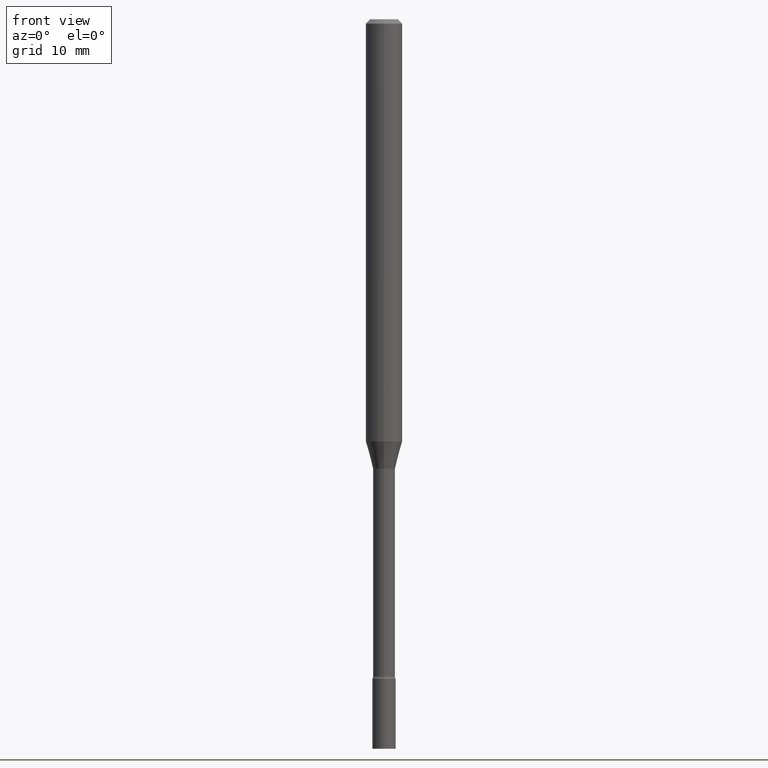
[diagram: clean part render]
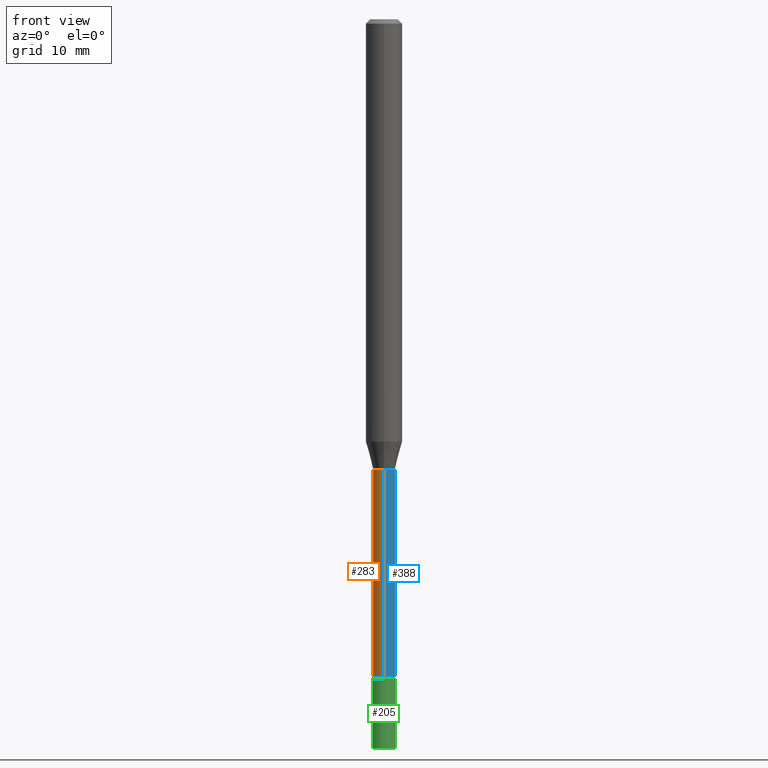
[diagram: same view with three faces highlighted in distinct colors, each labeled with its STEP entity id]
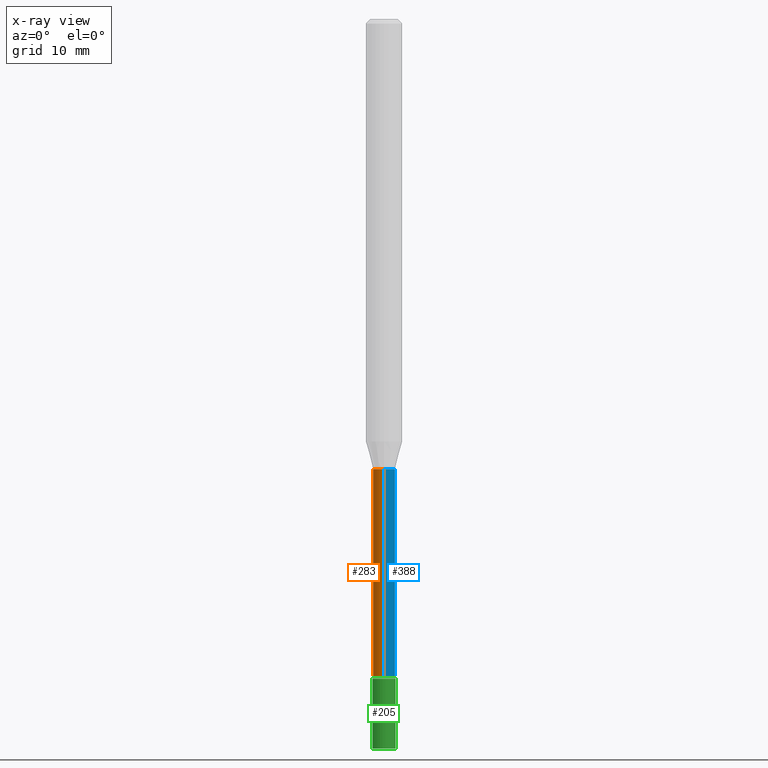
[diagram: x-ray of the same camera — body ghosted, the three highlighted faces saturated]
A machine part, front view with three faces highlighted in distinct colors.
The next image is the same camera in x-ray (body ghosted, the three faces saturated) — at least one of them is partly hidden behind the body in this view.
Their STEP definitions:

[orange] entity #283 — the highlighted cylindrical surface (edge-blend (fillet) strip) has radius 0.955 mm, axis along (-0, 0, 1).
#9 = DIRECTION ( 'NONE',  ( -2.445482954070053837E-29, 3.491461078266697012E-15, 1.000000000000000000 ) ) ;
#53 = VERTEX_POINT ( 'NONE', #300 ) ;
#57 = ORIENTED_EDGE ( 'NONE', *, *, #347, .F. ) ;
#74 = FACE_OUTER_BOUND ( 'NONE', #415, .T. ) ;
#77 = VECTOR ( 'NONE', #224, 39.37007874015748143 ) ;
#78 = AXIS2_PLACEMENT_3D ( 'NONE', #509, #295, #511 ) ;
#107 = DIRECTION ( 'NONE',  ( -6.982962677686265922E-15, -1.000000000000000000, 3.491461078266697012E-15 ) ) ;
#157 = DIRECTION ( 'NONE',  ( -2.445482954070053556E-29, 3.491461078266697012E-15, 1.000000000000000000 ) ) ;
#166 = CARTESIAN_POINT ( 'NONE',  ( -2.625593966809658857E-16, -0.03760000000000537912, -1.541974787463811003 ) ) ;
#171 = VERTEX_POINT ( 'NONE', #346 ) ;
#190 = CYLINDRICAL_SURFACE ( 'NONE', #209, 0.03760000000000004311 ) ;
#209 = AXIS2_PLACEMENT_3D ( 'NONE', #432, #157, #107 ) ;
#223 = VERTEX_POINT ( 'NONE', #501 ) ;
#224 = DIRECTION ( 'NONE',  ( -2.445482954070053837E-29, 3.491461078266697012E-15, 1.000000000000000000 ) ) ;
#240 = EDGE_CURVE ( 'NONE', #171, #454, #332, .T. ) ;
#271 = AXIS2_PLACEMENT_3D ( 'NONE', #434, #468, #391 ) ;
#275 = VECTOR ( 'NONE', #9, 39.37007874015748143 ) ;
#283 = ADVANCED_FACE ( 'NONE', ( #74 ), #190, .T. ) ;
#289 = CARTESIAN_POINT ( 'NONE',  ( -2.625593966810038989E-16, -0.03760000000000004311, 1.312789365428279582E-16 ) ) ;
#295 = DIRECTION ( 'NONE',  ( -2.445482954070053556E-29, 3.491461078266697012E-15, 1.000000000000000000 ) ) ;
#300 = CARTESIAN_POINT ( 'NONE',  ( 2.671640686458530486E-16, 0.03759999999999461689, -1.541974787463811003 ) ) ;
#311 = CIRCLE ( 'NONE', #271, 0.03759999999999999454 ) ;
#332 = LINE ( 'NONE', #289, #77 ) ;
#346 = CARTESIAN_POINT ( 'NONE',  ( -2.625593966809491224E-16, -0.03760000000000795345, -2.251861204020249918 ) ) ;
#347 = EDGE_CURVE ( 'NONE', #53, #454, #311, .T. ) ;
#352 = ORIENTED_EDGE ( 'NONE', *, *, #453, .F. ) ;
#360 = LINE ( 'NONE', #365, #275 ) ;
#361 = EDGE_CURVE ( 'NONE', #223, #171, #431, .T. ) ;
#365 = CARTESIAN_POINT ( 'NONE',  ( 2.671640686457979269E-16, 0.03760000000000004311, -1.312789365428279582E-16 ) ) ;
#391 = DIRECTION ( 'NONE',  ( -6.982962677686265922E-15, -1.000000000000000000, 0.000000000000000000 ) ) ;
#415 = EDGE_LOOP ( 'NONE', ( #352, #493, #500, #57 ) ) ;
#431 = CIRCLE ( 'NONE', #78, 0.03760000000000009168 ) ;
#432 = CARTESIAN_POINT ( 'NONE',  ( 0.000000000000000000, 0.000000000000000000, 0.000000000000000000 ) ) ;
#434 = CARTESIAN_POINT ( 'NONE',  ( 3.770873058348543263E-29, -5.383744954098458291E-15, -1.541974787463811003 ) ) ;
#453 = EDGE_CURVE ( 'NONE', #223, #53, #360, .T. ) ;
#454 = VERTEX_POINT ( 'NONE', #166 ) ;
#468 = DIRECTION ( 'NONE',  ( -2.445482954070053556E-29, 3.491461078266697012E-15, 1.000000000000000000 ) ) ;
#493 = ORIENTED_EDGE ( 'NONE', *, *, #361, .T. ) ;
#500 = ORIENTED_EDGE ( 'NONE', *, *, #240, .T. ) ;
#501 = CARTESIAN_POINT ( 'NONE',  ( 2.756905814749742978E-16, 0.03759999999999222992, -2.251861204020249918 ) ) ;
#509 = CARTESIAN_POINT ( 'NONE',  ( 5.506888189363188593E-29, -7.862285747495485924E-15, -2.251861204020249918 ) ) ;
#511 = DIRECTION ( 'NONE',  ( -6.982962677686265133E-15, -1.000000000000000000, 0.000000000000000000 ) ) ;

[blue] entity #388 — the highlighted cylindrical surface (edge-blend (fillet) strip) has radius 0.955 mm, axis along (-0, 0, 1).
#2 = DIRECTION ( 'NONE',  ( -2.445482954070053556E-29, 3.491461078266697012E-15, 1.000000000000000000 ) ) ;
#9 = DIRECTION ( 'NONE',  ( -2.445482954070053837E-29, 3.491461078266697012E-15, 1.000000000000000000 ) ) ;
#53 = VERTEX_POINT ( 'NONE', #300 ) ;
#63 = DIRECTION ( 'NONE',  ( -6.982962677686265133E-15, -1.000000000000000000, 0.000000000000000000 ) ) ;
#68 = ORIENTED_EDGE ( 'NONE', *, *, #240, .F. ) ;
#77 = VECTOR ( 'NONE', #224, 39.37007874015748143 ) ;
#101 = ORIENTED_EDGE ( 'NONE', *, *, #499, .T. ) ;
#116 = EDGE_LOOP ( 'NONE', ( #101, #417, #306, #68 ) ) ;
#121 = CIRCLE ( 'NONE', #222, 0.03760000000000009168 ) ;
#149 = CARTESIAN_POINT ( 'NONE',  ( 0.000000000000000000, 0.000000000000000000, 0.000000000000000000 ) ) ;
#166 = CARTESIAN_POINT ( 'NONE',  ( -2.625593966809658857E-16, -0.03760000000000537912, -1.541974787463811003 ) ) ;
#171 = VERTEX_POINT ( 'NONE', #346 ) ;
#189 = FACE_OUTER_BOUND ( 'NONE', #116, .T. ) ;
#202 = EDGE_CURVE ( 'NONE', #454, #53, #367, .T. ) ;
#204 = AXIS2_PLACEMENT_3D ( 'NONE', #149, #520, #465 ) ;
#222 = AXIS2_PLACEMENT_3D ( 'NONE', #426, #290, #63 ) ;
#223 = VERTEX_POINT ( 'NONE', #501 ) ;
#224 = DIRECTION ( 'NONE',  ( -2.445482954070053837E-29, 3.491461078266697012E-15, 1.000000000000000000 ) ) ;
#237 = CYLINDRICAL_SURFACE ( 'NONE', #204, 0.03760000000000004311 ) ;
#240 = EDGE_CURVE ( 'NONE', #171, #454, #332, .T. ) ;
#275 = VECTOR ( 'NONE', #9, 39.37007874015748143 ) ;
#289 = CARTESIAN_POINT ( 'NONE',  ( -2.625593966810038989E-16, -0.03760000000000004311, 1.312789365428279582E-16 ) ) ;
#290 = DIRECTION ( 'NONE',  ( -2.445482954070053556E-29, 3.491461078266697012E-15, 1.000000000000000000 ) ) ;
#300 = CARTESIAN_POINT ( 'NONE',  ( 2.671640686458530486E-16, 0.03759999999999461689, -1.541974787463811003 ) ) ;
#306 = ORIENTED_EDGE ( 'NONE', *, *, #202, .F. ) ;
#317 = AXIS2_PLACEMENT_3D ( 'NONE', #407, #2, #447 ) ;
#332 = LINE ( 'NONE', #289, #77 ) ;
#346 = CARTESIAN_POINT ( 'NONE',  ( -2.625593966809491224E-16, -0.03760000000000795345, -2.251861204020249918 ) ) ;
#360 = LINE ( 'NONE', #365, #275 ) ;
#365 = CARTESIAN_POINT ( 'NONE',  ( 2.671640686457979269E-16, 0.03760000000000004311, -1.312789365428279582E-16 ) ) ;
#367 = CIRCLE ( 'NONE', #317, 0.03759999999999999454 ) ;
#388 = ADVANCED_FACE ( 'NONE', ( #189 ), #237, .T. ) ;
#407 = CARTESIAN_POINT ( 'NONE',  ( 3.770873058348543263E-29, -5.383744954098458291E-15, -1.541974787463811003 ) ) ;
#417 = ORIENTED_EDGE ( 'NONE', *, *, #453, .T. ) ;
#426 = CARTESIAN_POINT ( 'NONE',  ( 5.506888189363188593E-29, -7.862285747495485924E-15, -2.251861204020249918 ) ) ;
#447 = DIRECTION ( 'NONE',  ( -6.982962677686265922E-15, -1.000000000000000000, 0.000000000000000000 ) ) ;
#453 = EDGE_CURVE ( 'NONE', #223, #53, #360, .T. ) ;
#454 = VERTEX_POINT ( 'NONE', #166 ) ;
#465 = DIRECTION ( 'NONE',  ( -6.982962677686265922E-15, -1.000000000000000000, 3.491461078266697012E-15 ) ) ;
#499 = EDGE_CURVE ( 'NONE', #171, #223, #121, .T. ) ;
#501 = CARTESIAN_POINT ( 'NONE',  ( 2.756905814749742978E-16, 0.03759999999999222992, -2.251861204020249918 ) ) ;
#520 = DIRECTION ( 'NONE',  ( -2.445482954070053556E-29, 3.491461078266697012E-15, 1.000000000000000000 ) ) ;

[green] entity #205 — the highlighted cylindrical surface (edge-blend (fillet) strip) has radius 1.016 mm, axis along (-0, 0, 1).
#3 = AXIS2_PLACEMENT_3D ( 'NONE', #40, #356, #159 ) ;
#14 = VERTEX_POINT ( 'NONE', #374 ) ;
#16 = LINE ( 'NONE', #165, #429 ) ;
#17 = EDGE_CURVE ( 'NONE', #195, #14, #16, .T. ) ;
#29 = EDGE_LOOP ( 'NONE', ( #324, #518, #236, #227 ) ) ;
#30 = DIRECTION ( 'NONE',  ( 1.000000000000000000, -6.982962677686259611E-15, 0.000000000000000000 ) ) ;
#40 = CARTESIAN_POINT ( 'NONE',  ( 0.000000000000000000, 0.000000000000000000, 0.000000000000000000 ) ) ;
#50 = VERTEX_POINT ( 'NONE', #462 ) ;
#73 = DIRECTION ( 'NONE',  ( -2.445468806185136597E-29, 3.491481338843145583E-15, 1.000000000000000000 ) ) ;
#79 = CARTESIAN_POINT ( 'NONE',  ( 0.04000000000000000083, -2.793185071074506290E-16, 1.950470710318374387E-30 ) ) ;
#87 = FACE_OUTER_BOUND ( 'NONE', #29, .T. ) ;
#90 = AXIS2_PLACEMENT_3D ( 'NONE', #191, #73, #400 ) ;
#110 = CARTESIAN_POINT ( 'NONE',  ( 0.04000000000000000083, -8.170066332892960135E-15, -2.260000000000000231 ) ) ;
#142 = EDGE_CURVE ( 'NONE', #195, #50, #469, .T. ) ;
#143 = AXIS2_PLACEMENT_3D ( 'NONE', #425, #264, #30 ) ;
#159 = DIRECTION ( 'NONE',  ( 1.000000000000000000, -6.982962677686265922E-15, 4.876176775795935793E-29 ) ) ;
#165 = CARTESIAN_POINT ( 'NONE',  ( -0.04000000000000000083, 2.842170943040400803E-16, -1.967574036101962509E-30 ) ) ;
#191 = CARTESIAN_POINT ( 'NONE',  ( 6.113672015462842613E-29, -8.728703347107864943E-15, -2.500000000000000000 ) ) ;
#195 = VERTEX_POINT ( 'NONE', #248 ) ;
#197 = CIRCLE ( 'NONE', #143, 0.04000000000000000083 ) ;
#205 = ADVANCED_FACE ( 'NONE', ( #87 ), #250, .T. ) ;
#227 = ORIENTED_EDGE ( 'NONE', *, *, #258, .F. ) ;
#236 = ORIENTED_EDGE ( 'NONE', *, *, #437, .T. ) ;
#247 = LINE ( 'NONE', #79, #496 ) ;
#248 = CARTESIAN_POINT ( 'NONE',  ( -0.04000000000000000083, -8.025508492142646404E-15, -2.500000000000000000 ) ) ;
#250 = CYLINDRICAL_SURFACE ( 'NONE', #3, 0.04000000000000000083 ) ;
#257 = VERTEX_POINT ( 'NONE', #110 ) ;
#258 = EDGE_CURVE ( 'NONE', #14, #257, #197, .T. ) ;
#264 = DIRECTION ( 'NONE',  ( -2.445468806185136597E-29, 3.491481338843145583E-15, 1.000000000000000000 ) ) ;
#313 = DIRECTION ( 'NONE',  ( -2.445468806185136877E-29, 3.491481338843145188E-15, 1.000000000000000000 ) ) ;
#324 = ORIENTED_EDGE ( 'NONE', *, *, #17, .F. ) ;
#356 = DIRECTION ( 'NONE',  ( -2.445468806185136597E-29, 3.491481338843145583E-15, 1.000000000000000000 ) ) ;
#374 = CARTESIAN_POINT ( 'NONE',  ( -0.04000000000000000083, -8.025508492142646404E-15, -2.260000000000000231 ) ) ;
#400 = DIRECTION ( 'NONE',  ( 1.000000000000000000, -6.982962677686259611E-15, 0.000000000000000000 ) ) ;
#425 = CARTESIAN_POINT ( 'NONE',  ( 5.526759501978408888E-29, -7.890747825785510097E-15, -2.260000000000000231 ) ) ;
#429 = VECTOR ( 'NONE', #490, 39.37007874015748143 ) ;
#437 = EDGE_CURVE ( 'NONE', #50, #257, #247, .T. ) ;
#462 = CARTESIAN_POINT ( 'NONE',  ( 0.04000000000000000083, -9.008021854215314980E-15, -2.500000000000000000 ) ) ;
#469 = CIRCLE ( 'NONE', #90, 0.04000000000000000083 ) ;
#490 = DIRECTION ( 'NONE',  ( -2.445468806185136877E-29, 3.491481338843145188E-15, 1.000000000000000000 ) ) ;
#496 = VECTOR ( 'NONE', #313, 39.37007874015748143 ) ;
#518 = ORIENTED_EDGE ( 'NONE', *, *, #142, .T. ) ;